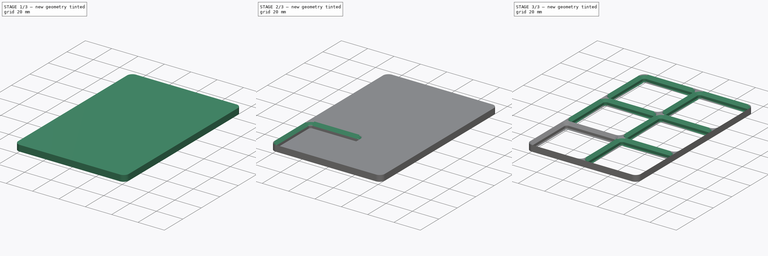
[diagram: build sequence overview — one tinted view per stage of 3, left to right]
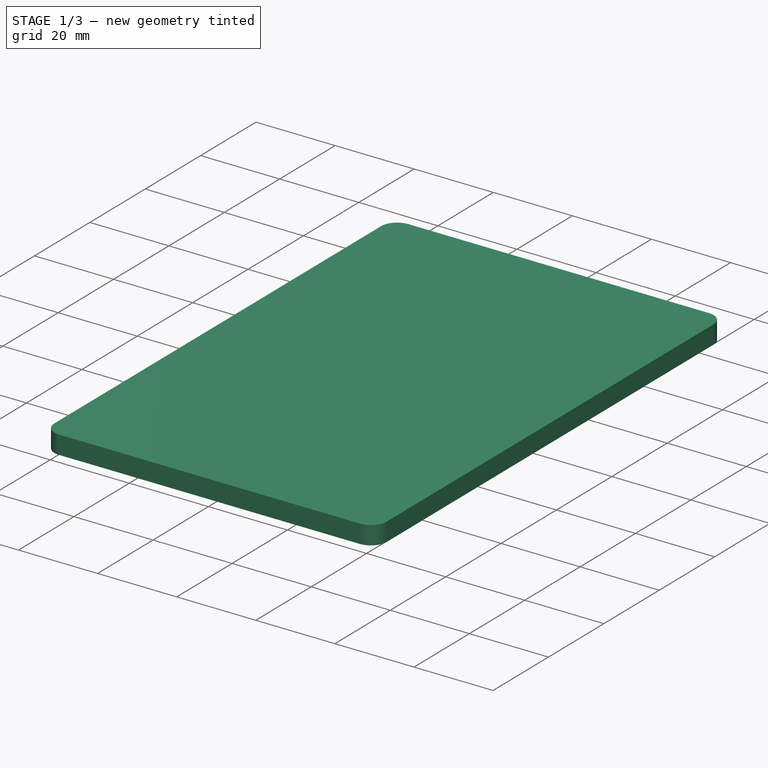
[diagram: stage 1 of 3 — iso view after this stage's code; geometry added in this stage tinted green]
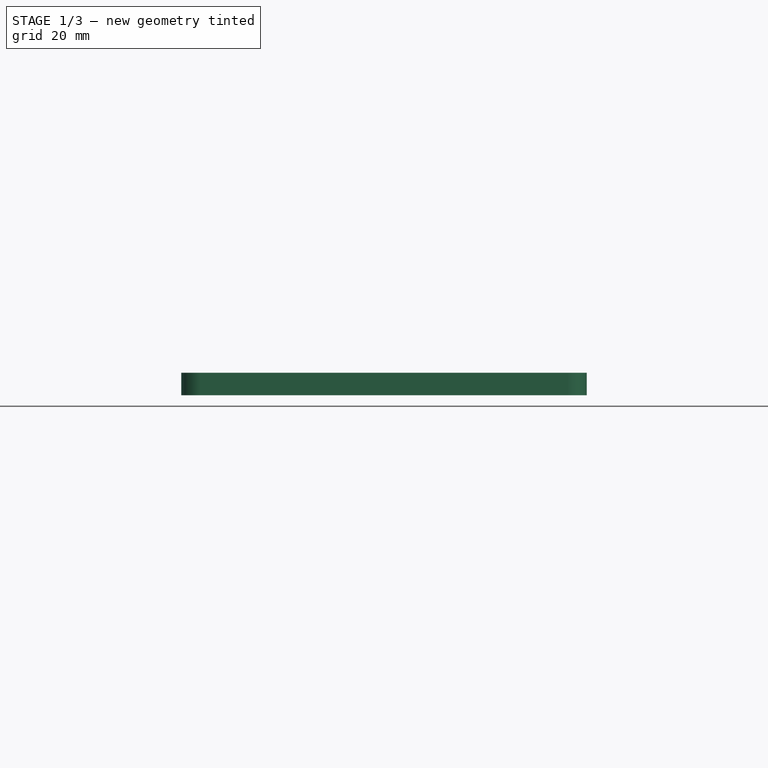
[diagram: stage 1 of 3 — front view after this stage's code; geometry added in this stage tinted green]
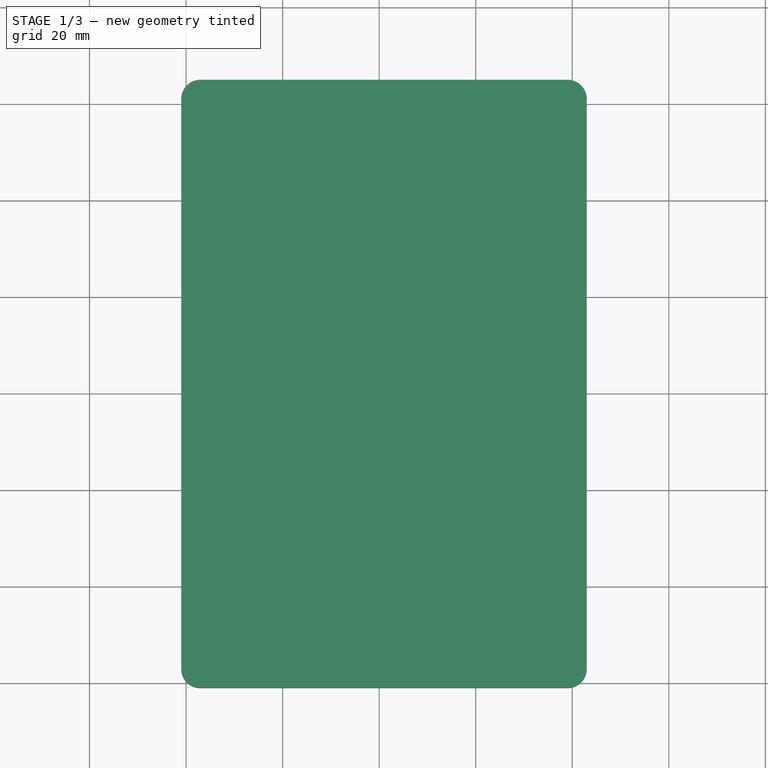
[diagram: stage 1 of 3 — top view after this stage's code; geometry added in this stage tinted green]
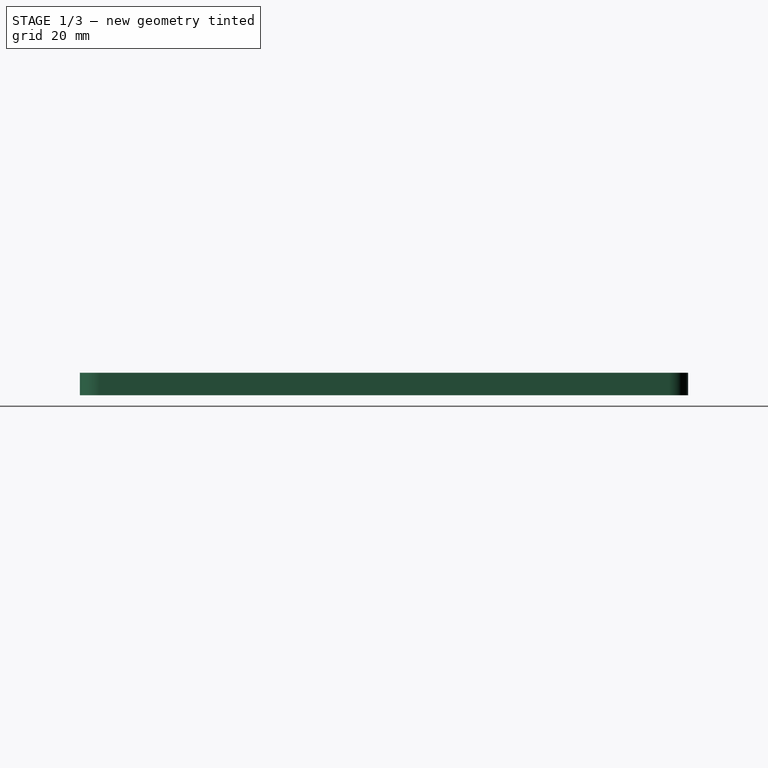
[diagram: stage 1 of 3 — right view after this stage's code; geometry added in this stage tinted green]
FCSTD DOCUMENT  (FreeCAD 0.21R33771 (Git))
Label: Parametric_Gridfinity-Baseplate
License: Creative Commons Attribution-ShareAlike 4.0
LicenseURL: https://creativecommons.org/licenses/by-sa/4.0/
objects: Sketcher::SketchObject×6, PartDesign::SubtractiveLoft×2, PartDesign::LinearPattern×2, Spreadsheet::Sheet×1, PartDesign::Pad×1, PartDesign::Plane×1, PartDesign::Pocket×1, PartDesign::MultiTransform×1, PartDesign::Body×1
note: 19 computed .brp shape members not serialized (recipe doc carries the construction recipe); baked Part::Feature solids carry a one-line shape summary decoded from their .brp

FEATURE [Spreadsheet::Sheet] Spreadsheet  label="data"
  cells = A1='CHANGE THESE TO ADJUST YOUR GRID; A2='x_units; B2(x_units)=2; C2='This is your grid size; A3='y_units; B3(y_units)=3; A5='EVERYTHING BELOW IS GRIDFINITY SPEC - CHANGE AT YOUR OWN RISK; A6='z_units; B6(z_units)=1; A7='xy_unit_val; B7(xy_unit_val)==42 mm; A8='z_unit_val; B8(z_unit_val)==7 mm; A9='corner_top; B9(corner_top)==8 mm; A10='corner_mid; B10(corner_mid)==3.7 mm; A11='corner_btm; B11(corner_btm)==2.3 mm; A12='angle; B12(angle)==45 °; A14='h_top; B14(h_top)==2.15 mm; A15='h_mid; B15(h_mid)==1.8 mm; A16='h_btm; B16(h_btm)==0.7 mm; A17='xy_top; B17(xy_top)==B7; A18='xy_mid; B18(xy_mid)==xy_unit_val - 2 * h_top; A19='xy_btm; B19(xy_btm)==xy_unit_val - 2 * (h_top + h_btm); A20='baseplate_z; B20(baseplate_z)==h_top + h_mid + h_btm; A22='offset; B22(offset)==0.25 mm
FEATURE [Sketcher::SketchObject] Sketch
  FullyConstrained = true
  MapMode = 5
  Support = -> [XY_Plane]
  expr: Constraints[19] = <<data>>.corner_top
  expr: Constraints[20] = <<data>>.xy_unit_val * <<data>>.x_units
  expr: Constraints[21] = <<data>>.xy_unit_val * <<data>>.y_units
  expr: Constraints[22] = <<data>>.xy_unit_val / 2
  expr: Constraints[23] = <<data>>.xy_unit_val / 2
  sketch-geometry (10):
    g0: ArcOfCircle CenterX=-17 CenterY=101 CenterZ=0 NormalX=0 NormalY=0 NormalZ=1 AngleXU=0 Radius=4 StartAngle=1.5708 EndAngle=3.14159
    g1: LineSegment StartX=-17 StartY=105 StartZ=0 EndX=59 EndY=105 EndZ=0
    g2: ArcOfCircle CenterX=59 CenterY=101 CenterZ=0 NormalX=0 NormalY=0 NormalZ=1 AngleXU=0 Radius=4 StartAngle=-1.8e-15 EndAngle=1.5708
    g3: LineSegment StartX=63 StartY=101 StartZ=0 EndX=63 EndY=-17 EndZ=0
    g4: ArcOfCircle CenterX=59 CenterY=-17 CenterZ=0 NormalX=0 NormalY=0 NormalZ=1 AngleXU=0 Radius=4 StartAngle=4.71239 EndAngle=6.28319
    g5: LineSegment StartX=59 StartY=-21 StartZ=0 EndX=-17 EndY=-21 EndZ=0
    g6: ArcOfCircle CenterX=-17 CenterY=-17 CenterZ=0 NormalX=0 NormalY=0 NormalZ=1 AngleXU=0 Radius=4 StartAngle=3.14159 EndAngle=4.71239
    g7: LineSegment StartX=-21 StartY=-17 StartZ=0 EndX=-21 EndY=101 EndZ=0
    g8: GeomPoint X=-21 Y=105 Z=0
    g9: GeomPoint X=63 Y=-21 Z=0
  constraints (24):
    c: Tangent(g0,g1) = 1.5708
    c: Tangent(g1,g2) = 1.5708
    c: Tangent(g2,g3) = 1.5708
    c: Tangent(g3,g4) = 1.5708
    c: Tangent(g4,g5) = 1.5708
    c: Tangent(g5,g6) = 1.5708
    c: Tangent(g6,g7) = 1.5708
    c: Tangent(g7,g0) = 1.5708
    c: Horizontal(g1)
    c: Horizontal(g5)
    c: Vertical(g3)
    c: Vertical(g7)
    c: Equal(g0,g2)
    c: Equal(g2,g4)
    c: Equal(g4,g6)
    c: PointOnObject(g8,g1)
    c: PointOnObject(g8,g7)
    c: PointOnObject(g9,g3)
    c: PointOnObject(g9,g5)
    c: Diameter(g0) = 8
    c: DistanceX(g0,g2) = 84
    c: DistanceY(g4,g1) = 126
    c: DistanceY(g5,g-1) = 21
    c: DistanceX(g6,g-1) = 21
FEATURE [PartDesign::Pad] Pad
  Direction = (0,0,1)
  Length = 4.65
  Length2 = 10
  Profile = -> Sketch
  ReferenceAxis = -> Sketch [N_Axis]
  Type = 0
  expr: Length = <<data>>.baseplate_z
FEATURE [Sketcher::SketchObject] Sketch001  label="top_sk"
  AttachmentOffset = pos=(0,0,4.65) rot=(0,0,1;0rad)
  FullyConstrained = true
  MapMode = 5
  Placement = pos=(0,0,4.65) rot=(0,0,1;0rad)
  Support = -> [XY_Plane]
  expr: .AttachmentOffset.Base.z = <<data>>.baseplate_z
  expr: Constraints[20] = <<data>>.corner_top
  expr: Constraints[22] = <<data>>.xy_unit_val
  sketch-geometry (10):
    g0: ArcOfCircle CenterX=-17 CenterY=17 CenterZ=0 NormalX=0 NormalY=0 NormalZ=1 AngleXU=0 Radius=4 StartAngle=1.5708 EndAngle=3.14159
    g1: LineSegment StartX=-17 StartY=21 StartZ=0 EndX=17 EndY=21 EndZ=0
    g2: ArcOfCircle CenterX=17 CenterY=17 CenterZ=0 NormalX=0 NormalY=0 NormalZ=1 AngleXU=0 Radius=4 StartAngle=5e-16 EndAngle=1.5708
    g3: LineSegment StartX=21 StartY=17 StartZ=0 EndX=21 EndY=-17 EndZ=0
    g4: ArcOfCircle CenterX=17 CenterY=-17 CenterZ=0 NormalX=0 NormalY=0 NormalZ=1 AngleXU=0 Radius=4 StartAngle=4.71239 EndAngle=6.28319
    g5: LineSegment StartX=17 StartY=-21 StartZ=0 EndX=-17 EndY=-21 EndZ=0
    g6: ArcOfCircle CenterX=-17 CenterY=-17 CenterZ=0 NormalX=0 NormalY=0 NormalZ=1 AngleXU=0 Radius=4 StartAngle=3.14159 EndAngle=4.71239
    g7: LineSegment StartX=-21 StartY=-17 StartZ=0 EndX=-21 EndY=17 EndZ=0
    g8: GeomPoint X=-21 Y=21 Z=0
    g9: GeomPoint X=21 Y=-21 Z=0
  constraints (23):
    c: Tangent(g0,g1) = 1.5708
    c: Tangent(g1,g2) = 1.5708
    c: Tangent(g2,g3) = 1.5708
    c: Tangent(g3,g4) = 1.5708
    c: Tangent(g4,g5) = 1.5708
    c: Tangent(g5,g6) = 1.5708
    c: Tangent(g6,g7) = 1.5708
    c: Tangent(g7,g0) = 1.5708
    c: Horizontal(g1)
    c: Horizontal(g5)
    c: Vertical(g3)
    c: Vertical(g7)
    c: Equal(g0,g2)
    c: Equal(g2,g4)
    c: Equal(g4,g6)
    c: PointOnObject(g8,g1)
    c: PointOnObject(g8,g7)
    c: PointOnObject(g9,g3)
    c: PointOnObject(g9,g5)
    c: Symmetric(g2,g6,g-1)
    c: Diameter(g2) = 8
    c: Equal(g1,g3)
    c: DistanceX(g0,g2) = 42
FEATURE [Sketcher::SketchObject] Sketch002  label="mid_sk"
  AttachmentOffset = pos=(0,0,2.5) rot=(0,0,1;0rad)
  FullyConstrained = true
  MapMode = 5
  Placement = pos=(0,0,2.5) rot=(0,0,1;0rad)
  Support = -> [XY_Plane]
  expr: .AttachmentOffset.Base.z = <<data>>.baseplate_z - <<data>>.h_top
  expr: Constraints[20] = <<data>>.corner_mid
  expr: Constraints[22] = <<data>>.xy_mid
  sketch-geometry (10):
    g0: ArcOfCircle CenterX=-17 CenterY=17 CenterZ=0 NormalX=0 NormalY=0 NormalZ=1 AngleXU=0 Radius=1.85 StartAngle=1.5708 EndAngle=3.14159
    g1: LineSegment StartX=-17 StartY=18.85 StartZ=0 EndX=17 EndY=18.85 EndZ=0
    g2: ArcOfCircle CenterX=17 CenterY=17 CenterZ=0 NormalX=0 NormalY=0 NormalZ=1 AngleXU=0 Radius=1.85 StartAngle=1e-16 EndAngle=1.5708
    g3: LineSegment StartX=18.85 StartY=17 StartZ=0 EndX=18.85 EndY=-17 EndZ=0
    g4: ArcOfCircle CenterX=17 CenterY=-17 CenterZ=0 NormalX=0 NormalY=0 NormalZ=1 AngleXU=0 Radius=1.85 StartAngle=4.71239 EndAngle=6.28319
    g5: LineSegment StartX=17 StartY=-18.85 StartZ=0 EndX=-17 EndY=-18.85 EndZ=0
    g6: ArcOfCircle CenterX=-17 CenterY=-17 CenterZ=0 NormalX=0 NormalY=0 NormalZ=1 AngleXU=0 Radius=1.85 StartAngle=3.14159 EndAngle=4.71239
    g7: LineSegment StartX=-18.85 StartY=-17 StartZ=0 EndX=-18.85 EndY=17 EndZ=0
    g8: GeomPoint X=-18.85 Y=18.85 Z=0
    g9: GeomPoint X=18.85 Y=-18.85 Z=0
  constraints (23):
    c: Tangent(g0,g1) = 1.5708
    c: Tangent(g1,g2) = 1.5708
    c: Tangent(g2,g3) = 1.5708
    c: Tangent(g3,g4) = 1.5708
    c: Tangent(g4,g5) = 1.5708
    c: Tangent(g5,g6) = 1.5708
    c: Tangent(g6,g7) = 1.5708
    c: Tangent(g7,g0) = 1.5708
    c: Horizontal(g1)
    c: Horizontal(g5)
    c: Vertical(g3)
    c: Vertical(g7)
    c: Equal(g0,g2)
    c: Equal(g2,g4)
    c: Equal(g4,g6)
    c: PointOnObject(g8,g1)
    c: PointOnObject(g8,g7)
    c: PointOnObject(g9,g3)
    c: PointOnObject(g9,g5)
    c: Symmetric(g2,g6,g-1)
    c: Diameter(g2) = 3.7
    c: Equal(g1,g3)
    c: DistanceX(g0,g2) = 37.7
FEATURE [Sketcher::SketchObject] Sketch003  label="btm_sk"
  FullyConstrained = true
  MapMode = 5
  Support = -> [XY_Plane]
  expr: Constraints[20] = <<data>>.corner_btm
  expr: Constraints[22] = <<data>>.xy_btm
  sketch-geometry (10):
    g0: ArcOfCircle CenterX=-17 CenterY=17 CenterZ=0 NormalX=0 NormalY=0 NormalZ=1 AngleXU=0 Radius=1.15 StartAngle=1.5708 EndAngle=3.14159
    g1: LineSegment StartX=-17 StartY=18.15 StartZ=0 EndX=17 EndY=18.15 EndZ=0
    g2: ArcOfCircle CenterX=17 CenterY=17 CenterZ=0 NormalX=0 NormalY=0 NormalZ=1 AngleXU=0 Radius=1.15 StartAngle=-9e-16 EndAngle=1.5708
    g3: LineSegment StartX=18.15 StartY=17 StartZ=0 EndX=18.15 EndY=-17 EndZ=0
    g4: ArcOfCircle CenterX=17 CenterY=-17 CenterZ=0 NormalX=0 NormalY=0 NormalZ=1 AngleXU=0 Radius=1.15 StartAngle=4.71239 EndAngle=6.28319
    g5: LineSegment StartX=17 StartY=-18.15 StartZ=0 EndX=-17 EndY=-18.15 EndZ=0
    g6: ArcOfCircle CenterX=-17 CenterY=-17 CenterZ=0 NormalX=0 NormalY=0 NormalZ=1 AngleXU=0 Radius=1.15 StartAngle=3.14159 EndAngle=4.71239
    g7: LineSegment StartX=-18.15 StartY=-17 StartZ=0 EndX=-18.15 EndY=17 EndZ=0
    g8: GeomPoint X=-18.15 Y=18.15 Z=0
    g9: GeomPoint X=18.15 Y=-18.15 Z=0
  constraints (23):
    c: Tangent(g0,g1) = 1.5708
    c: Tangent(g1,g2) = 1.5708
    c: Tangent(g2,g3) = 1.5708
    c: Tangent(g3,g4) = 1.5708
    c: Tangent(g4,g5) = 1.5708
    c: Tangent(g5,g6) = 1.5708
    c: Tangent(g6,g7) = 1.5708
    c: Tangent(g7,g0) = 1.5708
    c: Horizontal(g1)
    c: Horizontal(g5)
    c: Vertical(g3)
    c: Vertical(g7)
    c: Equal(g0,g2)
    c: Equal(g2,g4)
    c: Equal(g4,g6)
    c: PointOnObject(g8,g1)
    c: PointOnObject(g8,g7)
    c: PointOnObject(g9,g3)
    c: PointOnObject(g9,g5)
    c: Symmetric(g2,g6,g-1)
    c: Diameter(g2) = 2.3
    c: Equal(g1,g3)
    c: DistanceX(g0,g2) = 36.3
FEATURE [PartDesign::Plane] DatumPlane  label="mid"
  AttachmentOffset = pos=(0,0,0.7) rot=(0,0,1;0rad)
  Length = 109.392
  MapMode = 13
  Placement = pos=(-6.05,-17.7667,0.7) rot=(0,0,1;0rad)
  ResizeMode = 0
  Support = -> [Sketch003]
  Width = 151.392
  expr: .AttachmentOffset.Base.z = <<data>>.h_btm
FEATURE [Sketcher::SketchObject] Sketch004  label="mid_sk2"
  AttachmentOffset = pos=(0,0,2.5) rot=(0,0,1;0rad)
  FullyConstrained = true
  MapMode = 5
  Placement = pos=(0,0,2.5) rot=(0,0,1;0rad)
  Support = -> [XY_Plane]
  expr: .AttachmentOffset.Base.z = <<data>>.baseplate_z - <<data>>.h_top
  expr: Constraints[20] = <<data>>.corner_mid
  expr: Constraints[22] = <<data>>.xy_mid
  sketch-geometry (10):
    g0: ArcOfCircle CenterX=-17 CenterY=17 CenterZ=0 NormalX=0 NormalY=0 NormalZ=1 AngleXU=0 Radius=1.85 StartAngle=1.5708 EndAngle=3.14159
    g1: LineSegment StartX=-17 StartY=18.85 StartZ=0 EndX=17 EndY=18.85 EndZ=0
    g2: ArcOfCircle CenterX=17 CenterY=17 CenterZ=0 NormalX=0 NormalY=0 NormalZ=1 AngleXU=0 Radius=1.85 StartAngle=2e-16 EndAngle=1.5708
    g3: LineSegment StartX=18.85 StartY=17 StartZ=0 EndX=18.85 EndY=-17 EndZ=0
    g4: ArcOfCircle CenterX=17 CenterY=-17 CenterZ=0 NormalX=0 NormalY=0 NormalZ=1 AngleXU=0 Radius=1.85 StartAngle=4.71239 EndAngle=6.28319
    g5: LineSegment StartX=17 StartY=-18.85 StartZ=0 EndX=-17 EndY=-18.85 EndZ=0
    g6: ArcOfCircle CenterX=-17 CenterY=-17 CenterZ=0 NormalX=0 NormalY=0 NormalZ=1 AngleXU=0 Radius=1.85 StartAngle=3.14159 EndAngle=4.71239
    g7: LineSegment StartX=-18.85 StartY=-17 StartZ=0 EndX=-18.85 EndY=17 EndZ=0
    g8: GeomPoint X=-18.85 Y=18.85 Z=0
    g9: GeomPoint X=18.85 Y=-18.85 Z=0
  constraints (23):
    c: Tangent(g0,g1) = 1.5708
    c: Tangent(g1,g2) = 1.5708
    c: Tangent(g2,g3) = 1.5708
    c: Tangent(g3,g4) = 1.5708
    c: Tangent(g4,g5) = 1.5708
    c: Tangent(g5,g6) = 1.5708
    c: Tangent(g6,g7) = 1.5708
    c: Tangent(g7,g0) = 1.5708
    c: Horizontal(g1)
    c: Horizontal(g5)
    c: Vertical(g3)
    c: Vertical(g7)
    c: Equal(g0,g2)
    c: Equal(g2,g4)
    c: Equal(g4,g6)
    c: PointOnObject(g8,g1)
    c: PointOnObject(g8,g7)
    c: PointOnObject(g9,g3)
    c: PointOnObject(g9,g5)
    c: Symmetric(g2,g6,g-1)
    c: Diameter(g2) = 3.7
    c: Equal(g1,g3)
    c: DistanceX(g0,g2) = 37.7
FEATURE [PartDesign::Pocket] Pocket  label="matingface_1"
  BaseFeature = -> Pad
  Direction = (0,0,-1)
  Length = 0
  Length2 = 5
  Profile = -> Sketch004
  ReferenceAxis = -> Sketch004 [N_Axis]
  Type = 3
  UpToFace = -> DatumPlane [Plane]
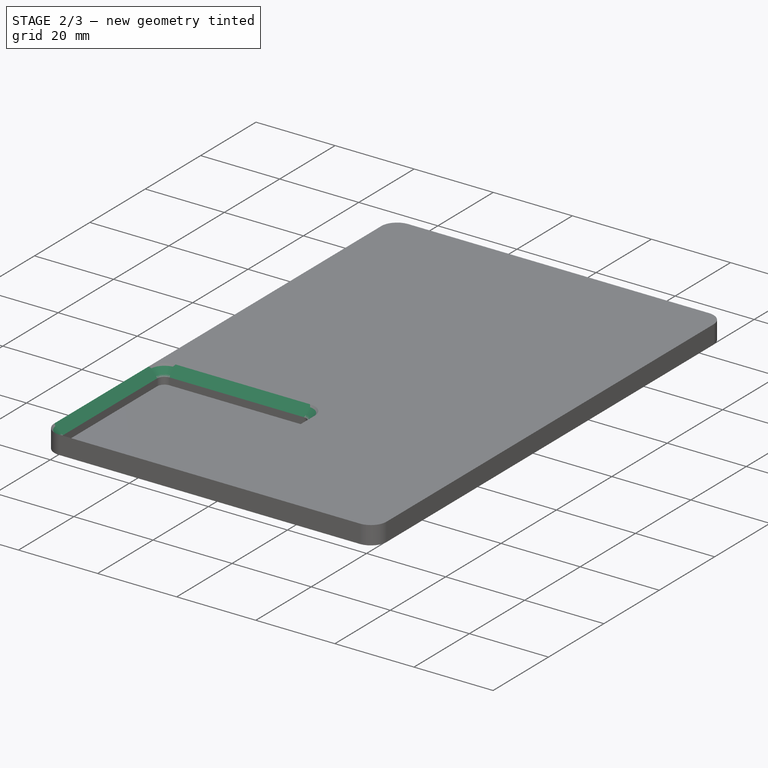
[diagram: stage 2 of 3 — iso view after this stage's code; geometry added in this stage tinted green]
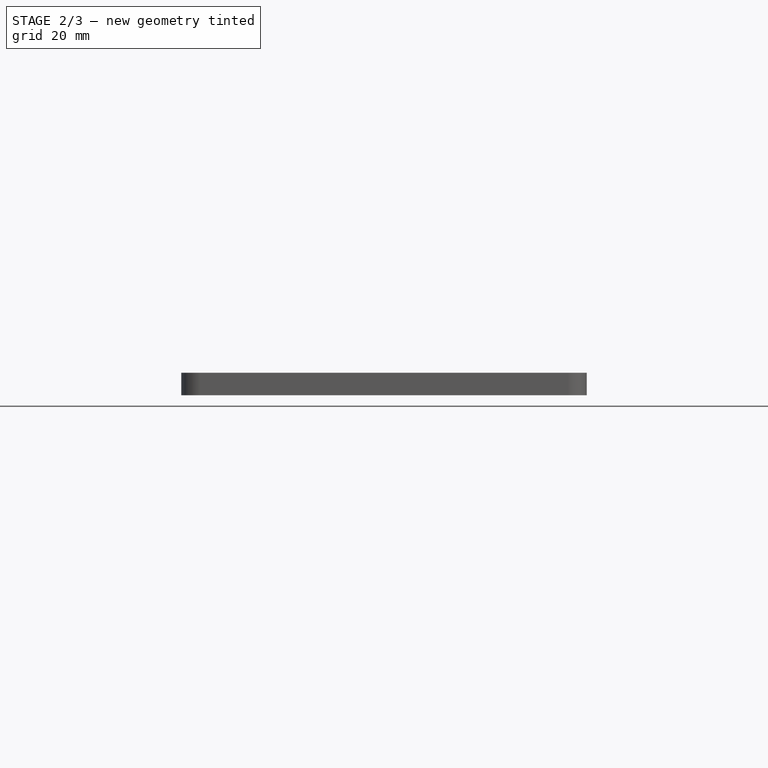
[diagram: stage 2 of 3 — front view after this stage's code; geometry added in this stage tinted green]
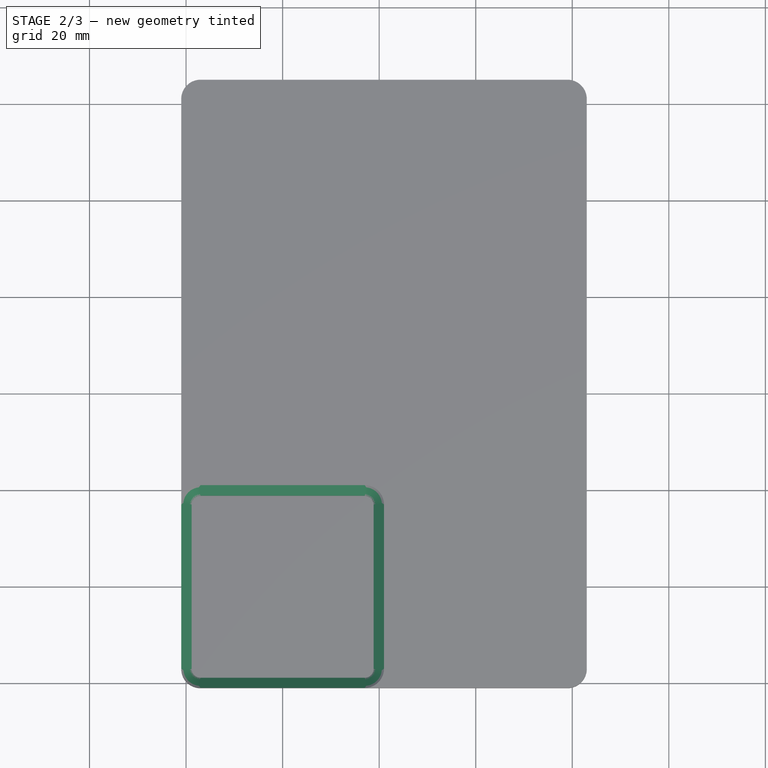
[diagram: stage 2 of 3 — top view after this stage's code; geometry added in this stage tinted green]
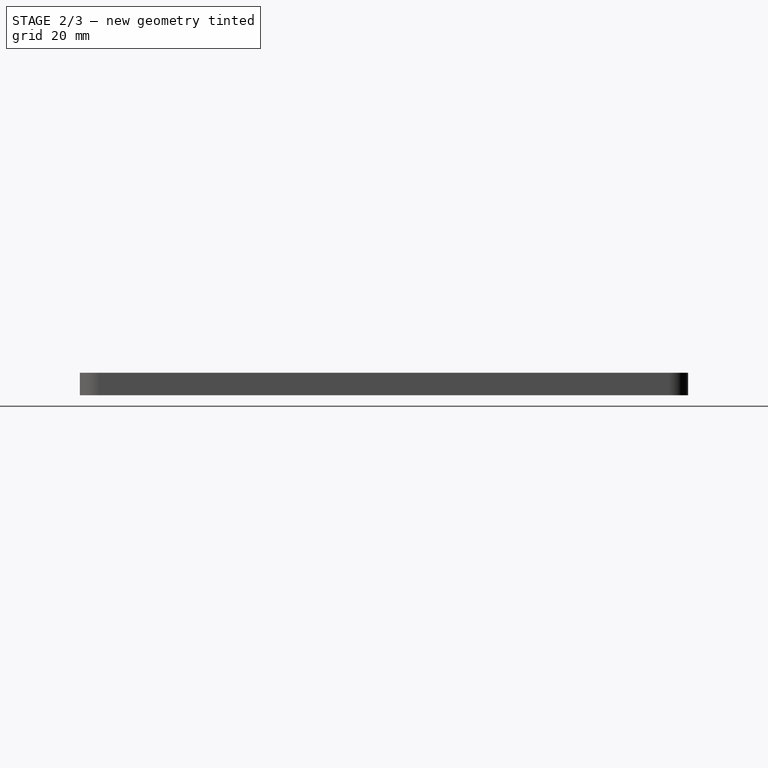
[diagram: stage 2 of 3 — right view after this stage's code; geometry added in this stage tinted green]
FEATURE [PartDesign::SubtractiveLoft] SubtractiveLoft  label="matingface_2"
  BaseFeature = -> Pocket
  Closed = false
  Profile = -> Sketch001
  Ruled = false
  Sections = -> [Sketch002]
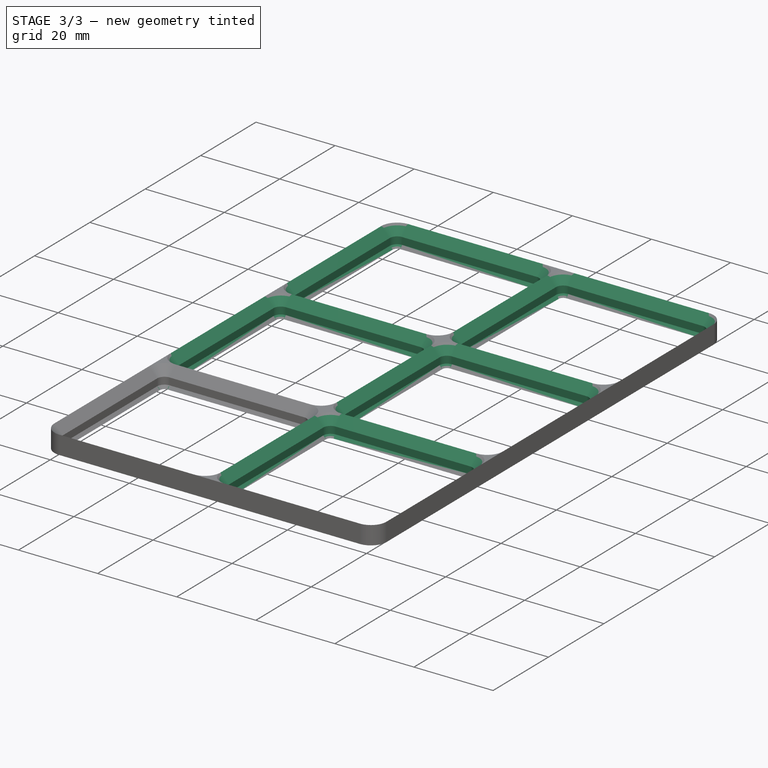
[diagram: stage 3 of 3 — iso view after this stage's code; geometry added in this stage tinted green]
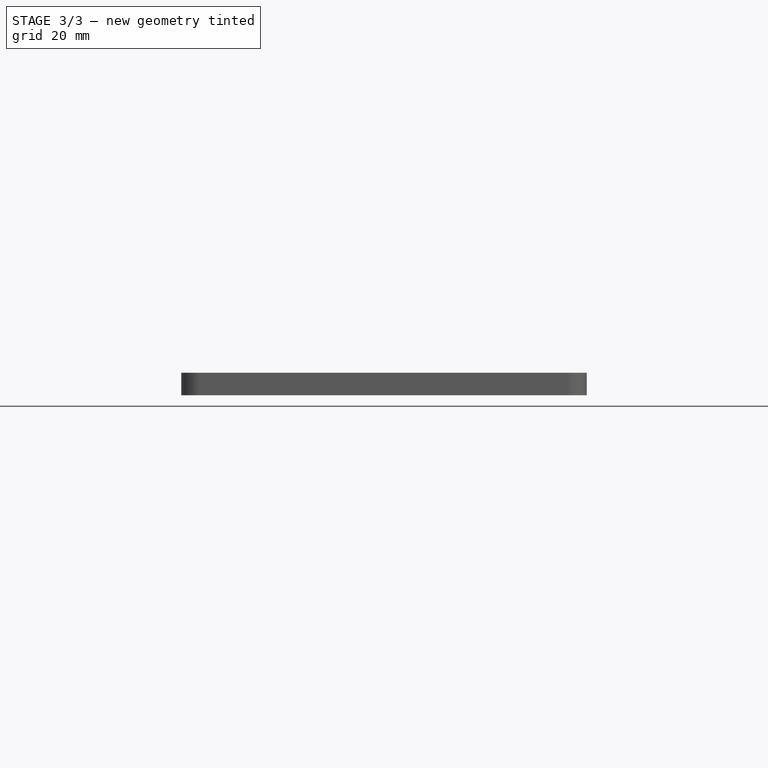
[diagram: stage 3 of 3 — front view after this stage's code; geometry added in this stage tinted green]
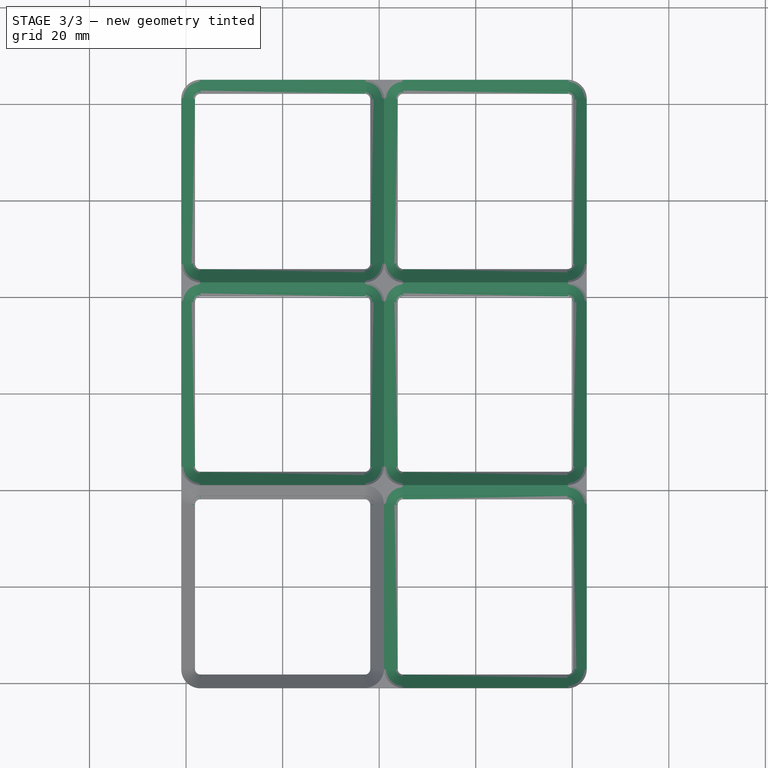
[diagram: stage 3 of 3 — top view after this stage's code; geometry added in this stage tinted green]
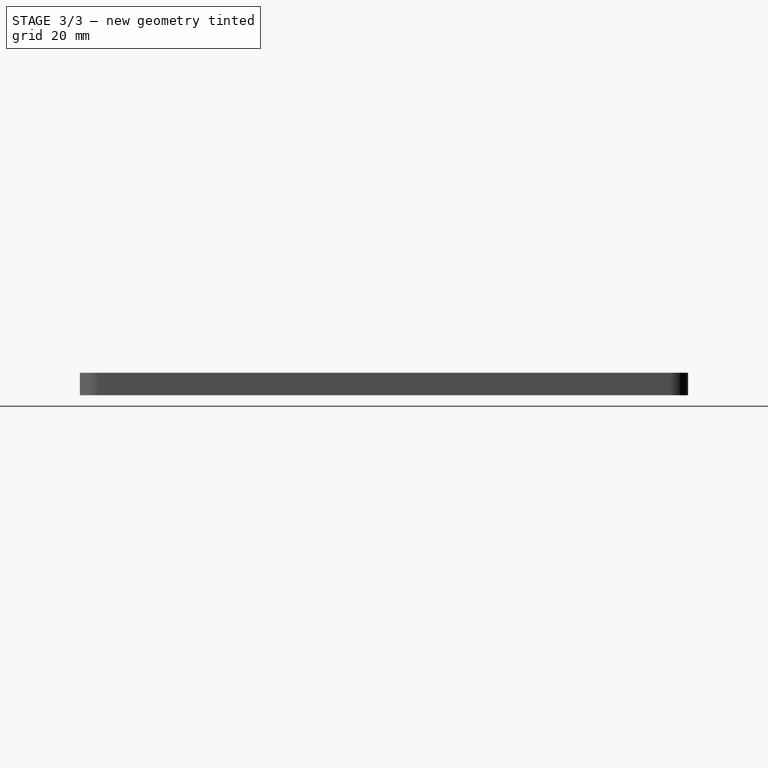
[diagram: stage 3 of 3 — right view after this stage's code; geometry added in this stage tinted green]
FEATURE [Sketcher::SketchObject] Sketch005  label="mid_sk3"
  AttachmentOffset = pos=(0,0,0.7) rot=(0,0,1;0rad)
  FullyConstrained = true
  MapMode = 5
  Placement = pos=(0,0,0.7) rot=(0,0,1;0rad)
  Support = -> [XY_Plane]
  expr: .AttachmentOffset.Base.z = <<data>>.h_btm
  expr: Constraints[20] = <<data>>.corner_mid
  expr: Constraints[22] = <<data>>.xy_mid
  sketch-geometry (10):
    g0: ArcOfCircle CenterX=-17 CenterY=17 CenterZ=0 NormalX=0 NormalY=0 NormalZ=1 AngleXU=0 Radius=1.85 StartAngle=1.5708 EndAngle=3.14159
    g1: LineSegment StartX=-17 StartY=18.85 StartZ=0 EndX=17 EndY=18.85 EndZ=0
    g2: ArcOfCircle CenterX=17 CenterY=17 CenterZ=0 NormalX=0 NormalY=0 NormalZ=1 AngleXU=0 Radius=1.85 StartAngle=2e-16 EndAngle=1.5708
    g3: LineSegment StartX=18.85 StartY=17 StartZ=0 EndX=18.85 EndY=-17 EndZ=0
    g4: ArcOfCircle CenterX=17 CenterY=-17 CenterZ=0 NormalX=0 NormalY=0 NormalZ=1 AngleXU=0 Radius=1.85 StartAngle=4.71239 EndAngle=6.28319
    g5: LineSegment StartX=17 StartY=-18.85 StartZ=0 EndX=-17 EndY=-18.85 EndZ=0
    g6: ArcOfCircle CenterX=-17 CenterY=-17 CenterZ=0 NormalX=0 NormalY=0 NormalZ=1 AngleXU=0 Radius=1.85 StartAngle=3.14159 EndAngle=4.71239
    g7: LineSegment StartX=-18.85 StartY=-17 StartZ=0 EndX=-18.85 EndY=17 EndZ=0
    g8: GeomPoint X=-18.85 Y=18.85 Z=0
    g9: GeomPoint X=18.85 Y=-18.85 Z=0
  constraints (23):
    c: Tangent(g0,g1) = 1.5708
    c: Tangent(g1,g2) = 1.5708
    c: Tangent(g2,g3) = 1.5708
    c: Tangent(g3,g4) = 1.5708
    c: Tangent(g4,g5) = 1.5708
    c: Tangent(g5,g6) = 1.5708
    c: Tangent(g6,g7) = 1.5708
    c: Tangent(g7,g0) = 1.5708
    c: Horizontal(g1)
    c: Horizontal(g5)
    c: Vertical(g3)
    c: Vertical(g7)
    c: Equal(g0,g2)
    c: Equal(g2,g4)
    c: Equal(g4,g6)
    c: PointOnObject(g8,g1)
    c: PointOnObject(g8,g7)
    c: PointOnObject(g9,g3)
    c: PointOnObject(g9,g5)
    c: Symmetric(g2,g6,g-1)
    c: Diameter(g2) = 3.7
    c: Equal(g1,g3)
    c: DistanceX(g0,g2) = 37.7
FEATURE [PartDesign::SubtractiveLoft] SubtractiveLoft001  label="matingface_3"
  BaseFeature = -> SubtractiveLoft
  Closed = false
  Profile = -> Sketch003
  Ruled = false
  Sections = -> [Sketch005]
FEATURE [PartDesign::LinearPattern] LinearPattern
  Direction = -> X_Axis
  Length = 84
  Occurrences = 3
  expr: Length = <<data>>.xy_unit_val * <<data>>.x_units
  expr: Occurrences = <<data>>.x_units + 1
FEATURE [PartDesign::LinearPattern] LinearPattern001
  Direction = -> Y_Axis
  Length = 126
  Occurrences = 4
  expr: Length = <<data>>.xy_unit_val * <<data>>.y_units
  expr: Occurrences = <<data>>.y_units + 1
FEATURE [PartDesign::MultiTransform] MultiTransform
  BaseFeature = -> SubtractiveLoft001
  Originals = -> [Pocket,SubtractiveLoft,SubtractiveLoft001]
  Transformations = -> [LinearPattern,LinearPattern001]
FEATURE [PartDesign::Body] Body  label="Baseplate"
  Group = -> [Sketch,Pad,Sketch001,Sketch002,Sketch003,DatumPlane,Sketch004,Pocket,SubtractiveLoft,Sketch005,SubtractiveLoft001,MultiTransform,LinearPattern,LinearPattern001]
  Origin = -> Origin
  Tip = -> MultiTransform
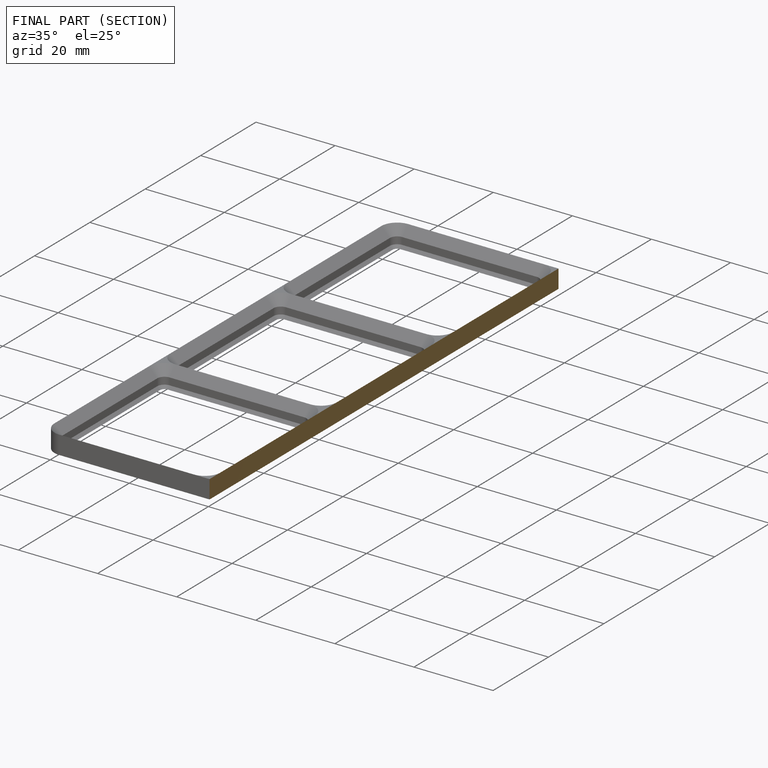
[diagram: finished part — half-section view (interior)]
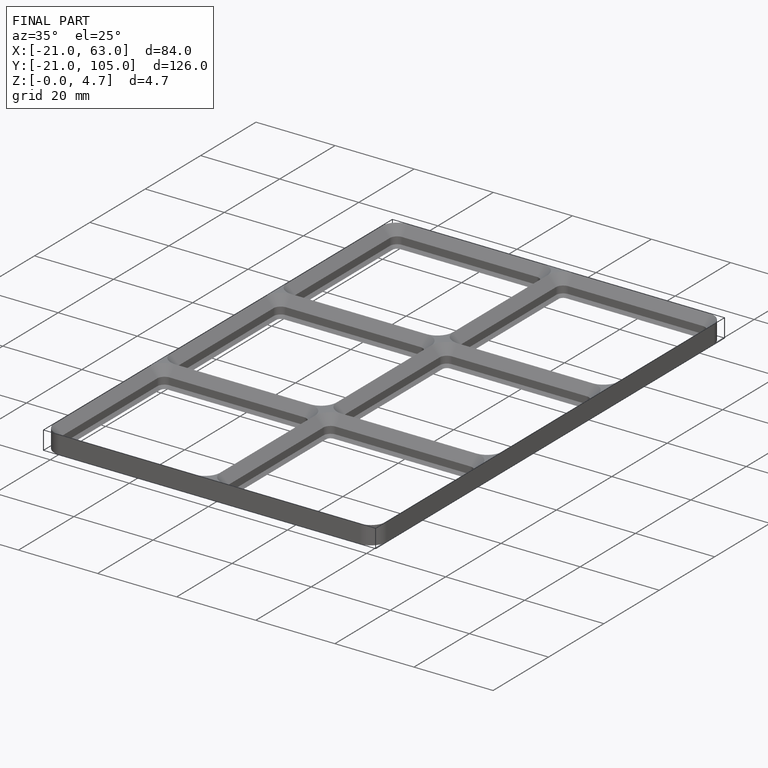
[diagram: finished part — iso view with bounding-box wireframe]
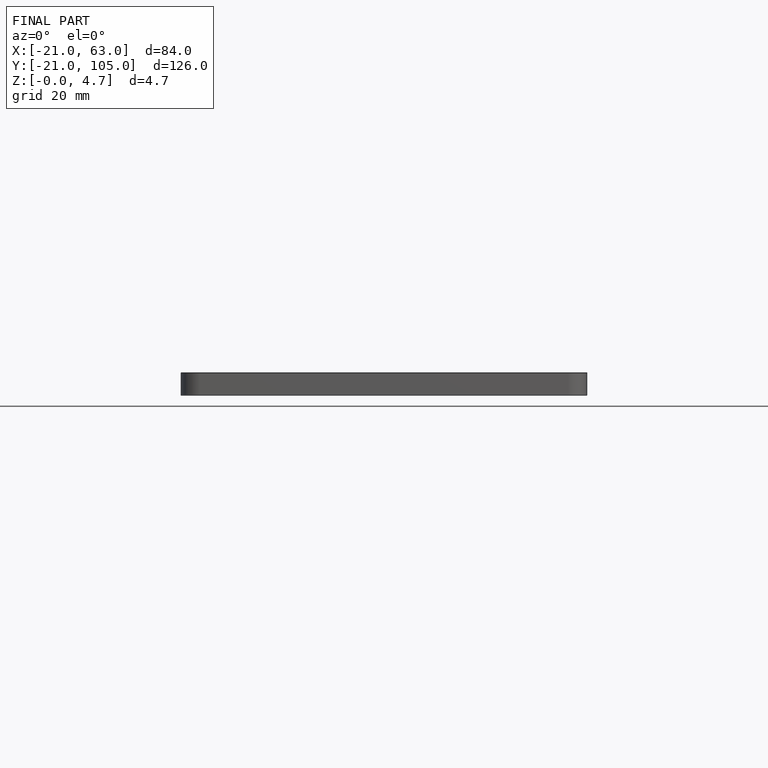
[diagram: finished part — front view with bounding-box wireframe]
